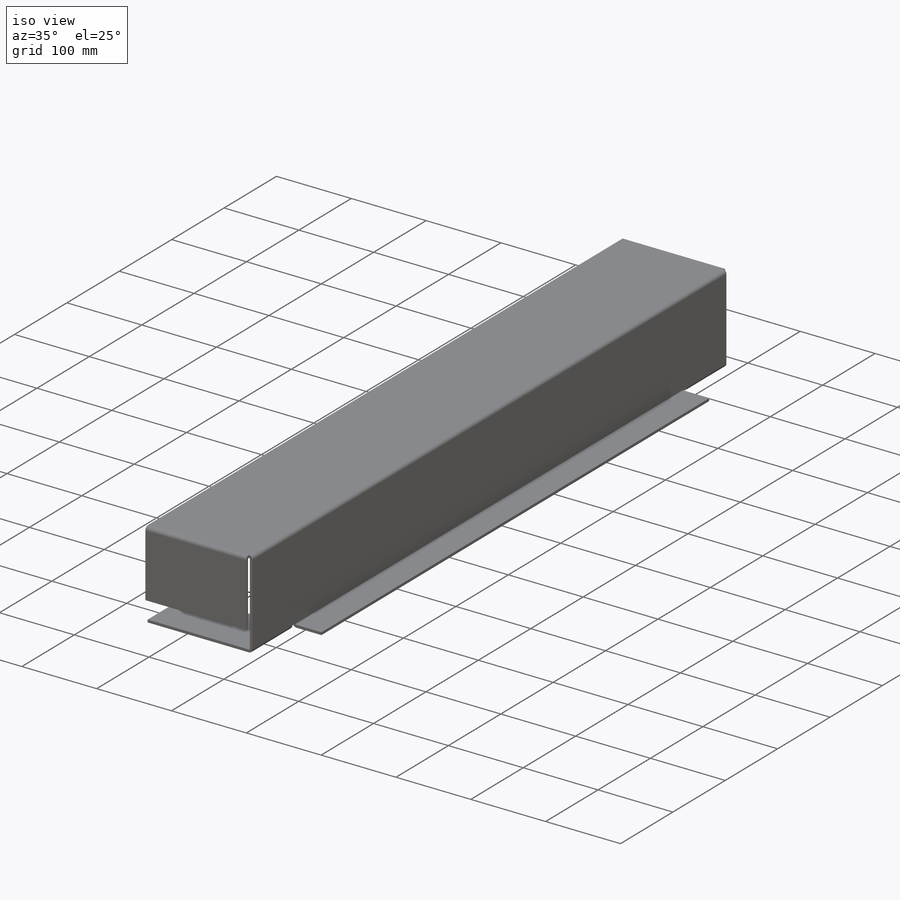
[diagram: iso view]
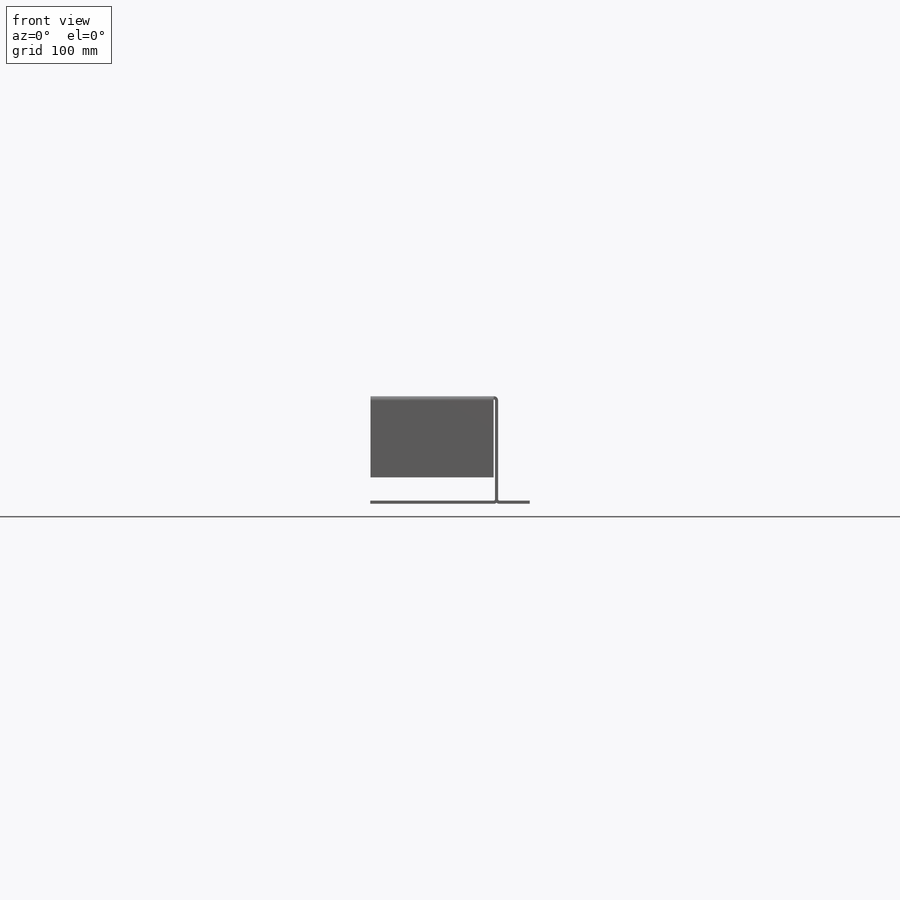
[diagram: front view]
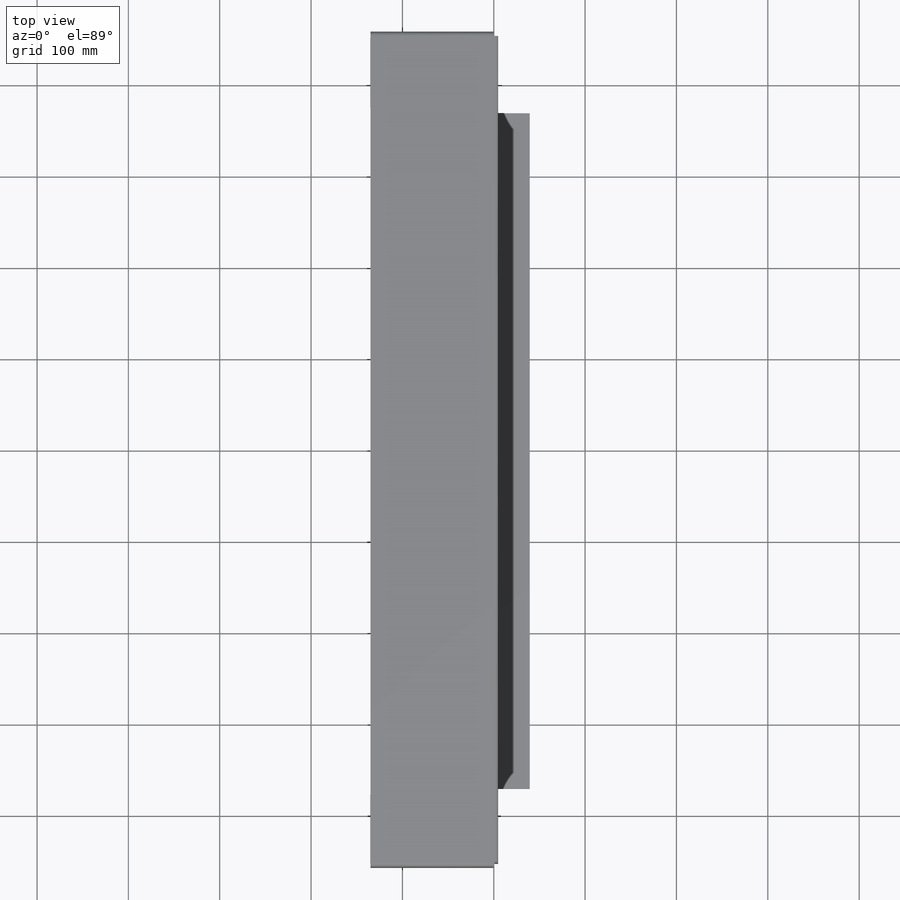
[diagram: top view]
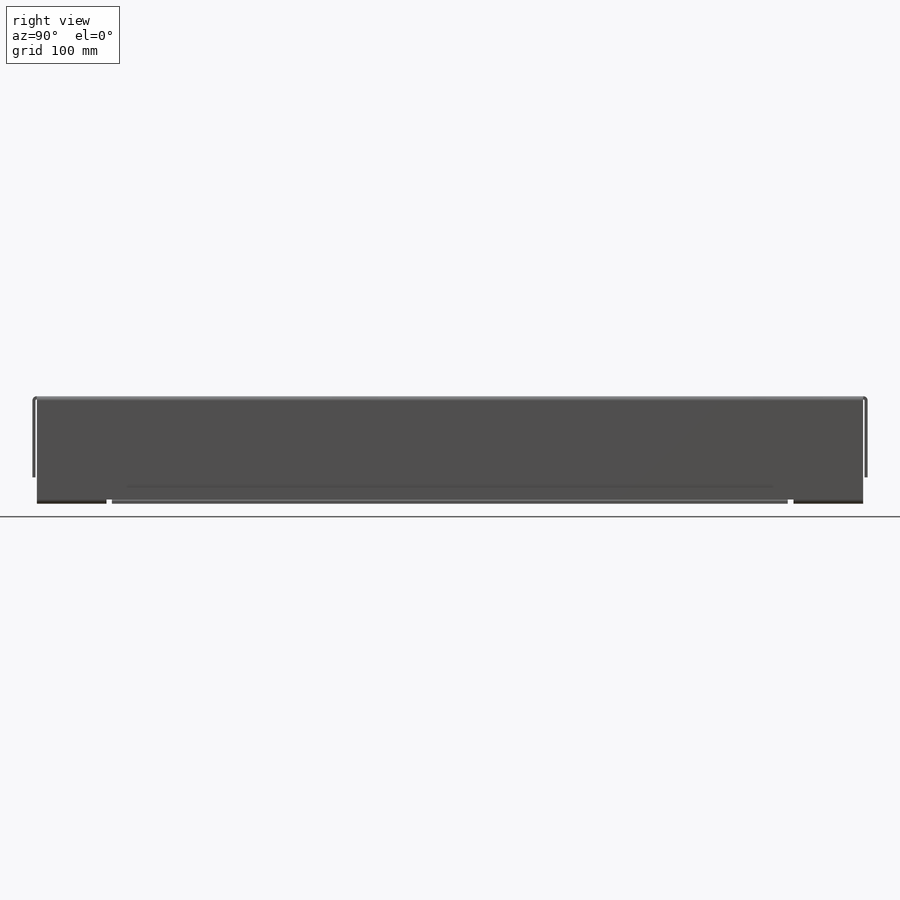
[diagram: right view]
SOLIDWORKS PART (.sldprt)
format: sldprt  version: not decoded by parser v0  size: 638,464 bytes
history: native  units: mm
features: sketch x20, sheet_metal_op x4, extrude x2, material x1, shell x1, plane x1, cut_extrude x1 + 6 further entries (+12 scaffold rows collapsed; 1 parser-record rows omitted)
feature tree (49):
  scaffold x12  (default folders/planes/origin — collapsed)
  material  "6061-T6 (SS)"
  sketch  "Sketch1"  dims[D1=914.4mm D2=139.7mm]
  extrude  "Boss-Extrude1"  Depth=114.3mm
  shell  "Shell1"  Thickness=2.54mm SharpBend2=0 SharpBend3=0
  plane  "Plane1"
  sketch  "Sketch9"  dims[c1.EdgeBend1=0.0 c1.D1=1.27mm c1.D4=90.0deg c1.D5=4.0 c1.D8=~1.74625mm c1.D9=~1.74625mm c2.D1=1.27mm c2.D2=500.0mm c2.D3=0.0mm c2.D6=10.0mm c2.D7=136.525mm]
  parser-record x1  (decoder bookkeeping rows leaked as tree rows — omitted from the tree; the rows remain in map.json)
  sketch  "Sketch10"  dims[D1=76.2mm D2=76.2mm D3=25.4mm D4=25.4mm]
  cut_extrude  "Cut-Extrude1"  [1 undecoded]
  sketch  "Sketch10-1"  dims[D1=76.2mm D2=76.2mm D3=25.4mm D4=25.4mm]
  "Unfold2"
  sketch  "Sketch10-2"  dims[D1=76.2mm D2=76.2mm D3=25.4mm D4=25.4mm]
  sketch  "Sketch10-3"  dims[D1=76.2mm D2=76.2mm D3=25.4mm D4=25.4mm]
  "Unfold5"
  sketch  "Sketch10-4"  dims[D1=76.2mm D2=76.2mm D3=25.4mm D4=25.4mm]
  sketch  "Sketch10-5"  dims[D1=76.2mm D2=76.2mm D3=25.4mm D4=25.4mm]
  sketch  "Sketch27"  dims[D1=5.969mm D2=6.35mm]
  extrude  "Boss-Extrude2"  Depth=38.1mm
  sketch  "Sketch28"  dims[c1.SketchBend1=0.0 c1.D1=1.27mm c1.D4=90.0deg c1.D5=5.0 c1.D8=~1.74625mm c1.D9=~1.74625mm c2.D1=1.27mm c2.D2=500.0mm c2.D3=0.0mm]
  sketch  "Bend-Lines1"
  sketch  "Bounding-Box1"
  sheet_metal_op  "Sheet-Metal(14)"
  "Flat-Pattern(14)"
  sketch  "Bend-Lines2"
  sketch  "Bounding-Box2"
  sheet_metal_op  "Sheet-Metal(15)"
  "Flat-Pattern(14)"
  sketch  "Bend-Lines2"
  sketch  "Bounding-Box2"
  sheet_metal_op  "Sheet-Metal(16)"
  "Flat-Pattern(14)"
  sketch  "Bend-Lines2"
  sketch  "Bounding-Box2"
  sheet_metal_op  "Sheet-Metal(21)"
  "Flat-Pattern(14)"
  sketch  "Bend-Lines2"
  sketch  "Bounding-Box2"
decode coverage: 13 of 28 modeling features carry decoded parameters; 6 rows unclassified (native names shown)
note: ~ marks probable driven/reference dimensions
note: 1 parameter value undecoded
note: suppression state not decoded; provenance and decode notes live in map.json
